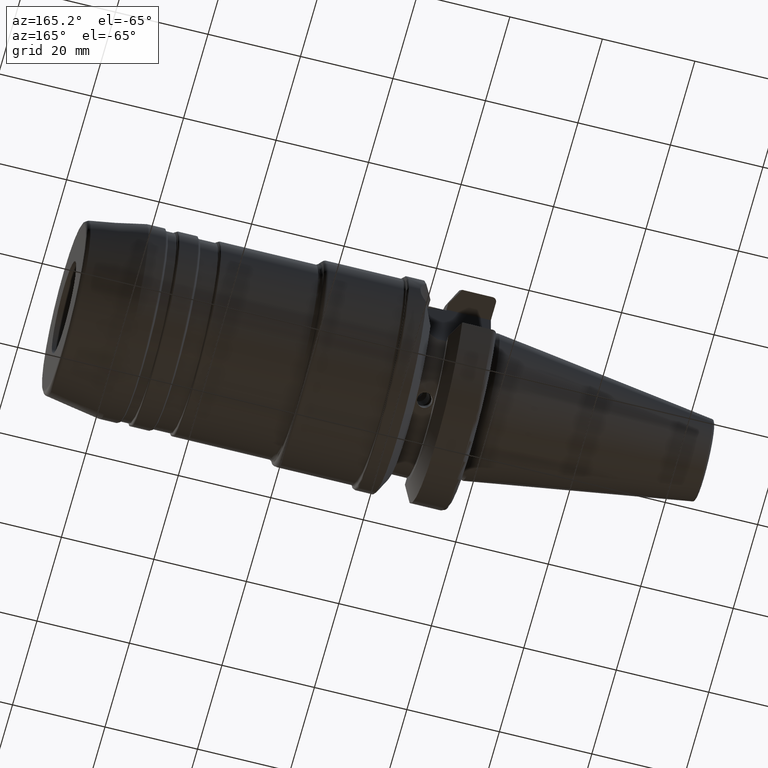
[diagram: clean part render]
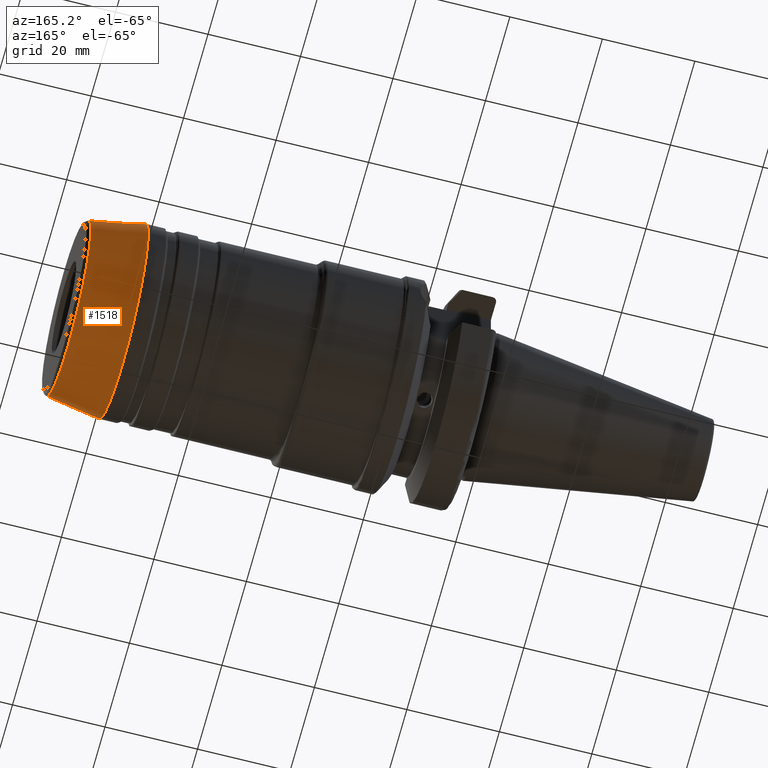
[diagram: same view with one face highlighted and labeled with its STEP entity id]
A machine part, auxiliary view. The second image highlights one B-rep face of the part: STEP entity #1518.
In plain terms, the highlighted conical surface has half-angle 10 deg.
Its self-contained STEP definition (entity closure, byte-faithful):
#106=CONICAL_SURFACE('',#1673,19.875,0.174532925199432);
#129=LINE('',#2458,#204);
#204=VECTOR('',#1971,19.875);
#330=FACE_OUTER_BOUND('',#425,.T.);
#425=EDGE_LOOP('',(#1092,#1093,#1094,#1095));
#544=CIRCLE('',#1672,18.8957081218349);
#545=CIRCLE('',#1674,20.9848077530122);
#640=VERTEX_POINT('',#2453);
#641=VERTEX_POINT('',#2457);
#809=EDGE_CURVE('',#640,#640,#544,.T.);
#810=EDGE_CURVE('',#640,#641,#129,.T.);
#811=EDGE_CURVE('',#641,#641,#545,.T.);
#1092=ORIENTED_EDGE('',*,*,#809,.F.);
#1093=ORIENTED_EDGE('',*,*,#810,.T.);
#1094=ORIENTED_EDGE('',*,*,#811,.F.);
#1095=ORIENTED_EDGE('',*,*,#810,.F.);
#1518=ADVANCED_FACE('',(#330),#106,.T.);
#1672=AXIS2_PLACEMENT_3D('',#2455,#1967,#1968);
#1673=AXIS2_PLACEMENT_3D('',#2456,#1969,#1970);
#1674=AXIS2_PLACEMENT_3D('',#2459,#1972,#1973);
#1967=DIRECTION('center_axis',(1.,0.,0.));
#1968=DIRECTION('ref_axis',(0.,0.,1.));
#1969=DIRECTION('center_axis',(-1.,0.,0.));
#1970=DIRECTION('ref_axis',(0.,0.,-1.));
#1971=DIRECTION('',(-0.984807753012208,-2.12657684957577E-17,0.17364817766693));
#1972=DIRECTION('center_axis',(-1.,0.,0.));
#1973=DIRECTION('ref_axis',(0.,0.,1.));
#2453=CARTESIAN_POINT('',(89.1736481776669,-2.31405684690278E-15,18.8957081218349));
#2455=CARTESIAN_POINT('Origin',(89.1736481776669,-2.31405684690278E-15,
0.));
#2456=CARTESIAN_POINT('Origin',(83.6198079529301,0.,0.));
#2457=CARTESIAN_POINT('',(77.3257754200011,-2.5698977645449E-15,20.9848077530122));
#2458=CARTESIAN_POINT('',(83.6198079529301,-2.43398551330536E-15,19.875));
#2459=CARTESIAN_POINT('Origin',(77.3257754200011,-2.5698977645449E-15,0.));